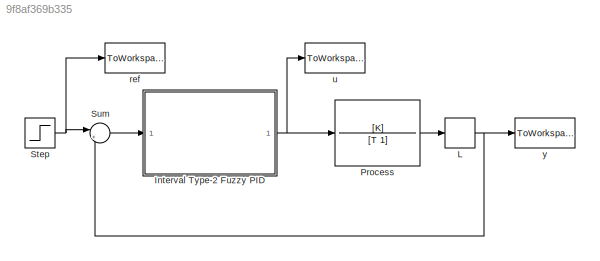
MODEL slx_9f8af369b335
KIND model
CONFIG AbsTol = auto
CONFIG EnableMultiTasking = on
CONFIG FixedStep = 0.05
CONFIG MaxStep = auto
CONFIG MinStep = auto
CONFIG RelTol = 1e-3
CONFIG SampleTimeConstraint = Unconstrained
CONFIG SolverName = ode4
CONFIG StartTime = 0.0
CONFIG StopTime = 8
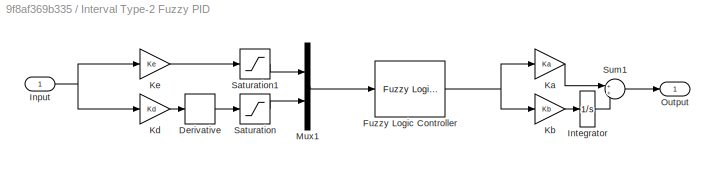
BLOCK [SubSystem] Interval Type-2 Fuzzy PID
BLOCK [Derivative] Interval Type-2 Fuzzy PID/Derivative
BLOCK [Reference] Interval Type-2 Fuzzy PID/Fuzzy Logic Controller  REF=fuzblock/Fuzzy Logic   (lib defined in mdl_858b3b3e7478)
Controller
  SourceBlock = fuzblock/Fuzzy Logic \nController
  SourceType = Fuzzy Inference System
BLOCK [Inport] Interval Type-2 Fuzzy PID/Input
BLOCK [Integrator] Interval Type-2 Fuzzy PID/Integrator
BLOCK [Gain] Interval Type-2 Fuzzy PID/Ka
  Gain = Ka
BLOCK [Gain] Interval Type-2 Fuzzy PID/Kb
  Gain = Kb
BLOCK [Gain] Interval Type-2 Fuzzy PID/Kd
  Gain = Kd
BLOCK [Gain] Interval Type-2 Fuzzy PID/Ke
  Gain = Ke
BLOCK [Mux] Interval Type-2 Fuzzy PID/Mux1
  DisplayOption = bar
  Inputs = 2
BLOCK [Outport] Interval Type-2 Fuzzy PID/Output
BLOCK [Saturate] Interval Type-2 Fuzzy PID/Saturation
  LowerLimit = -1
  UpperLimit = 1
BLOCK [Saturate] Interval Type-2 Fuzzy PID/Saturation1
  LowerLimit = -1
  UpperLimit = 1
BLOCK [Sum] Interval Type-2 Fuzzy PID/Sum1
BLOCK [TransportDelay] L
  DelayTime = L
BLOCK [TransferFcn] Process
  Denominator = [T 1]
  Numerator = [K]
BLOCK [Step] Step
  SampleTime = 0
BLOCK [Sum] Sum
  Inputs = |+-
BLOCK [ToWorkspace] ref
  MaxDataPoints = inf
  SampleTime = -1
  SaveFormat = Structure With Time
  VariableName = ref
BLOCK [ToWorkspace] u
  MaxDataPoints = inf
  SampleTime = -1
  SaveFormat = Structure With Time
  VariableName = u
BLOCK [ToWorkspace] y
  MaxDataPoints = inf
  SampleTime = -1
  SaveFormat = Structure With Time
  VariableName = y
LINE Interval Type-2 Fuzzy PID/Derivative:1 -> Interval Type-2 Fuzzy PID/Saturation:1
NET Interval Type-2 Fuzzy PID/Fuzzy Logic Controller:1 -> Interval Type-2 Fuzzy PID/Ka:1, Interval Type-2 Fuzzy PID/Kb:1
NET Interval Type-2 Fuzzy PID/Input:1 -> Interval Type-2 Fuzzy PID/Kd:1, Interval Type-2 Fuzzy PID/Ke:1
LINE Interval Type-2 Fuzzy PID/Integrator:1 -> Interval Type-2 Fuzzy PID/Sum1:2
LINE Interval Type-2 Fuzzy PID/Ka:1 -> Interval Type-2 Fuzzy PID/Sum1:1
LINE Interval Type-2 Fuzzy PID/Kb:1 -> Interval Type-2 Fuzzy PID/Integrator:1
LINE Interval Type-2 Fuzzy PID/Kd:1 -> Interval Type-2 Fuzzy PID/Derivative:1
LINE Interval Type-2 Fuzzy PID/Ke:1 -> Interval Type-2 Fuzzy PID/Saturation1:1
LINE Interval Type-2 Fuzzy PID/Mux1:1 -> Interval Type-2 Fuzzy PID/Fuzzy Logic Controller:1
LINE Interval Type-2 Fuzzy PID/Saturation1:1 -> Interval Type-2 Fuzzy PID/Mux1:1
LINE Interval Type-2 Fuzzy PID/Saturation:1 -> Interval Type-2 Fuzzy PID/Mux1:2
LINE Interval Type-2 Fuzzy PID/Sum1:1 -> Interval Type-2 Fuzzy PID/Output:1
NET Interval Type-2 Fuzzy PID:1 -> Process:1, u:1
NET L:1 -> Sum:2, y:1
LINE Process:1 -> L:1
NET Step:1 -> Sum:1, ref:1
LINE Sum:1 -> Interval Type-2 Fuzzy PID:1
note: NET lines group one-source signal fan-out (src -> all destinations, sorted); 1:1 wires keep LINE
